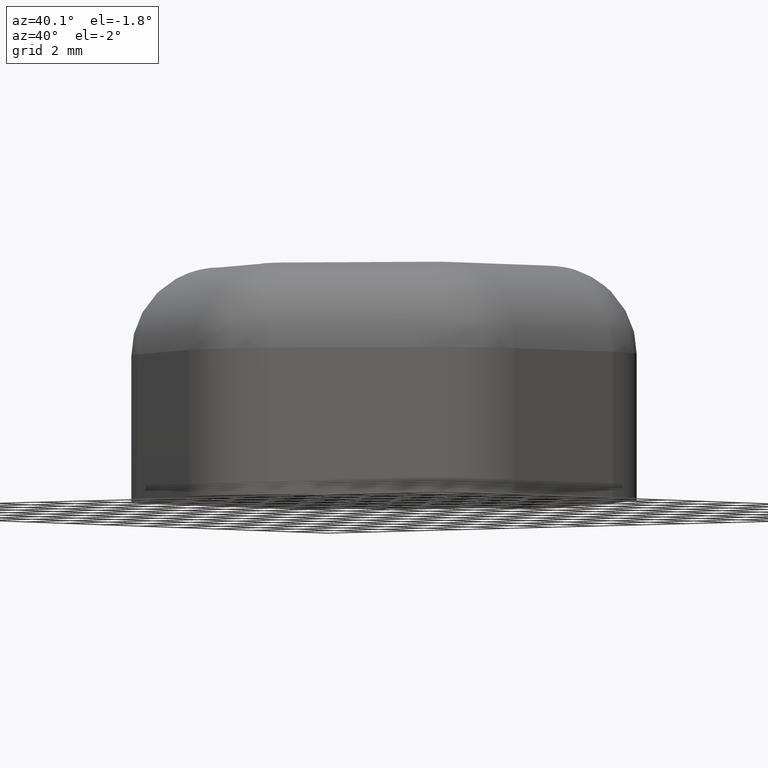
[diagram: clean part render]
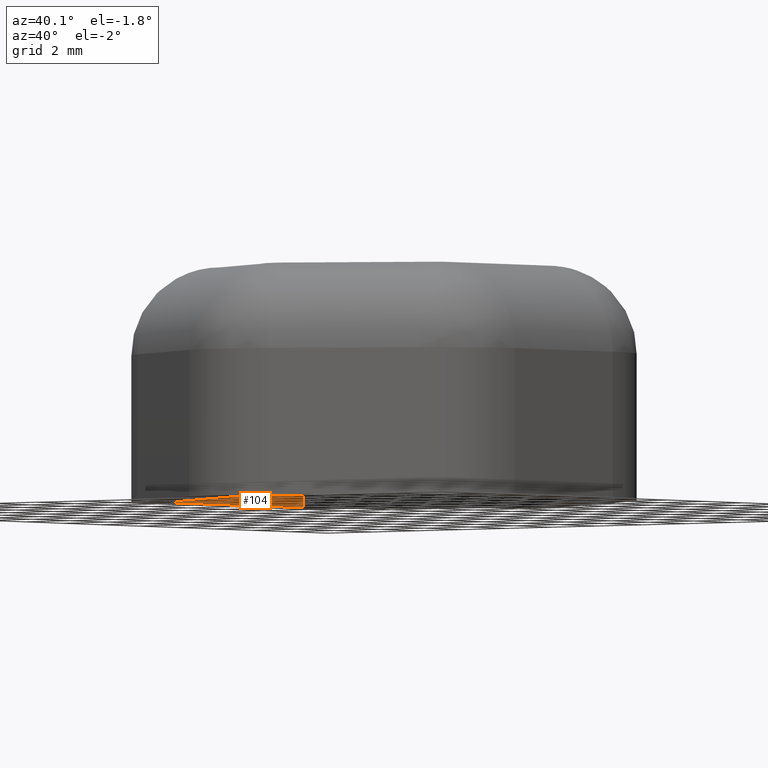
[diagram: same view with one face highlighted and labeled with its STEP entity id]
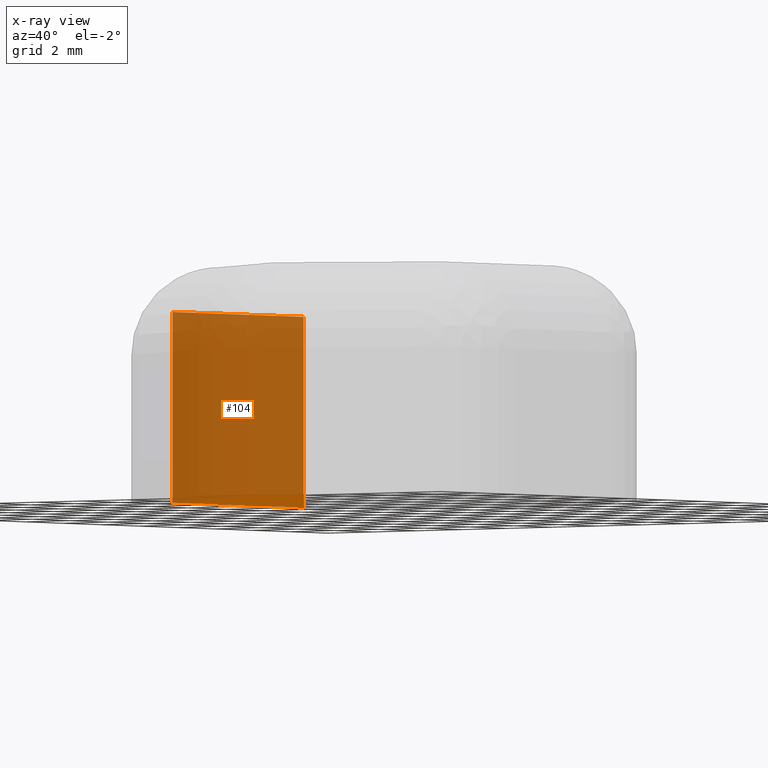
[diagram: x-ray of the same camera — body ghosted, the highlighted face saturated]
A machine part, auxiliary view. The second image highlights one B-rep face of the part: STEP entity #104.
The next image is the same camera in x-ray: the body ghosted, the highlighted face saturated — about 96% of this face is hidden behind the body in this view.
In plain terms, the highlighted planar face has unit normal (1, 0, 0).
Its self-contained STEP definition (entity closure, byte-faithful):
#104 = ADVANCED_FACE( '', ( #174 ), #175, .T. );
#174 = FACE_OUTER_BOUND( '', #385, .T. );
#175 = PLANE( '', #386 );
#385 = EDGE_LOOP( '', ( #626, #627, #628, #629 ) );
#386 = AXIS2_PLACEMENT_3D( '', #630, #631, #632 );
#626 = ORIENTED_EDGE( '', *, *, #725, .T. );
#627 = ORIENTED_EDGE( '', *, *, #737, .F. );
#628 = ORIENTED_EDGE( '', *, *, #783, .F. );
#629 = ORIENTED_EDGE( '', *, *, #710, .F. );
#630 = CARTESIAN_POINT( '', ( -6.49999999999999, -3.46410161513776, -30.0000000000000 ) );
#631 = DIRECTION( '', ( 1.00000000000000, 3.33066907387547E-016, 1.22460635382238E-016 ) );
#632 = DIRECTION( '', ( 3.33066907387547E-016, -1.00000000000000, 4.07875851034759E-032 ) );
#710 = EDGE_CURVE( '', #819, #821, #822, .T. );
#725 = EDGE_CURVE( '', #819, #847, #849, .T. );
#737 = EDGE_CURVE( '', #869, #847, #871, .T. );
#783 = EDGE_CURVE( '', #821, #869, #939, .T. );
#819 = VERTEX_POINT( '', #982 );
#821 = VERTEX_POINT( '', #984 );
#822 = LINE( '', #985, #986 );
#847 = VERTEX_POINT( '', #1018 );
#849 = LINE( '', #1020, #1021 );
#869 = VERTEX_POINT( '', #1047 );
#871 = LINE( '', #1049, #1050 );
#939 = LINE( '', #1140, #1141 );
#982 = CARTESIAN_POINT( '', ( -6.50000000000000, 3.46410161513775, -7.95994129984545E-016 ) );
#984 = CARTESIAN_POINT( '', ( -6.50000000000000, -3.46410161513776, -7.95994129984545E-016 ) );
#985 = CARTESIAN_POINT( '', ( -6.50000000000000, 2.59807621135332, -7.95994129984545E-016 ) );
#986 = VECTOR( '', #1186, 1000.00000000000 );
#1018 = CARTESIAN_POINT( '', ( -6.50000000000000, 3.46410161513775, 6.50000000000000 ) );
#1020 = CARTESIAN_POINT( '', ( -6.50000000000000, 3.46410161513775, -30.0000000000000 ) );
#1021 = VECTOR( '', #1215, 1000.00000000000 );
#1047 = CARTESIAN_POINT( '', ( -6.50000000000000, -3.46410161513776, 6.50000000000000 ) );
#1049 = CARTESIAN_POINT( '', ( -6.50000000000000, -3.46410161513776, 6.50000000000000 ) );
#1050 = VECTOR( '', #1237, 1000.00000000000 );
#1140 = CARTESIAN_POINT( '', ( -6.50000000000000, -3.46410161513776, -30.0000000000000 ) );
#1141 = VECTOR( '', #1329, 1000.00000000000 );
#1186 = DIRECTION( '', ( 3.33066907387547E-016, -1.00000000000000, 4.07875851034759E-032 ) );
#1215 = DIRECTION( '', ( -1.22460635382238E-016, 0.000000000000000, 1.00000000000000 ) );
#1237 = DIRECTION( '', ( -3.33066907387547E-016, 1.00000000000000, -4.07875851034759E-032 ) );
#1329 = DIRECTION( '', ( -1.22460635382238E-016, 0.000000000000000, 1.00000000000000 ) );